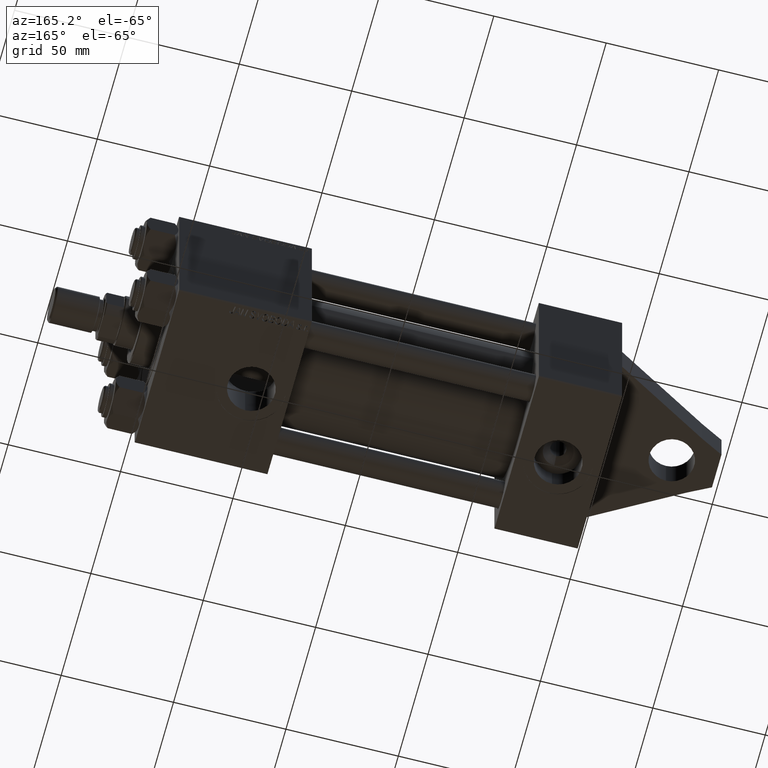
[diagram: clean part render]
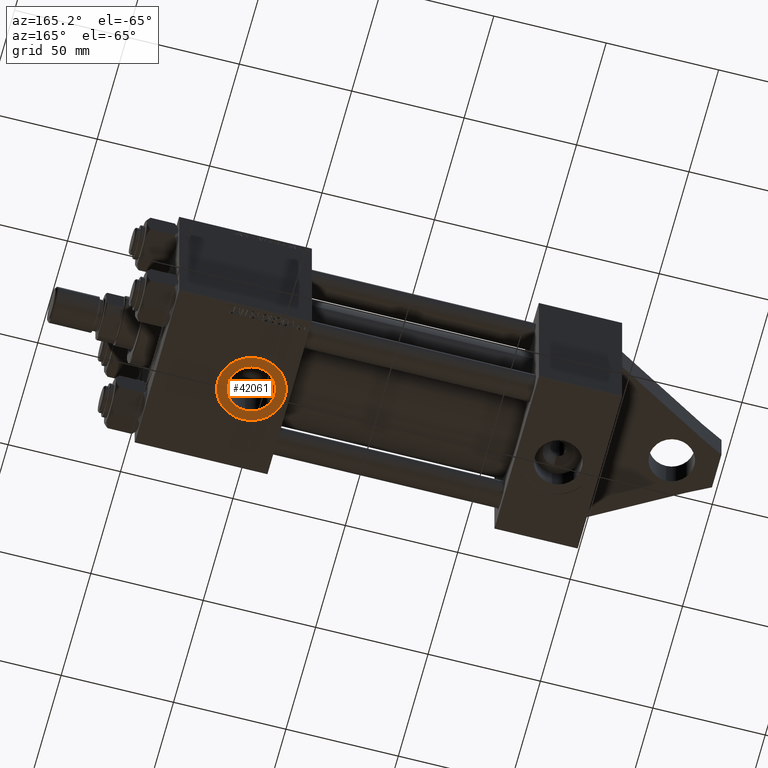
[diagram: same view with one face highlighted and labeled with its STEP entity id]
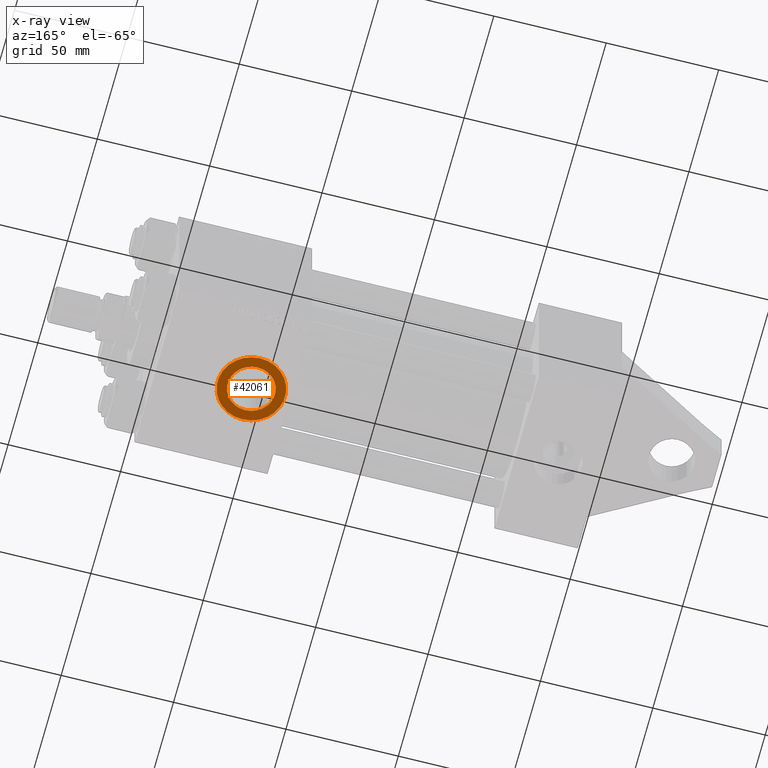
[diagram: x-ray of the same camera — body ghosted, the highlighted face saturated]
A machine part, auxiliary view. The second image highlights one B-rep face of the part: STEP entity #42061.
The next image is the same camera in x-ray: the body ghosted, the highlighted face saturated — about 0% of this face is hidden behind the body in this view.
In plain terms, the highlighted planar face has unit normal (-0, 0, -1).
Its self-contained STEP definition (entity closure, byte-faithful):
#183 = DIRECTION ( 'NONE',  ( 0.000000000000000000, -1.000000000000000000, -8.673617379884036705E-17 ) ) ;
#2932 = CIRCLE ( 'NONE', #23175, 15.00000000000002487 ) ;
#3242 = CARTESIAN_POINT ( 'NONE',  ( 155.0000000000000284, -37.29999999999999716, 3.486794186713383443E-15 ) ) ;
#3503 = DIRECTION ( 'NONE',  ( 0.000000000000000000, 0.000000000000000000, -1.000000000000000000 ) ) ;
#5045 = ORIENTED_EDGE ( 'NONE', *, *, #7814, .T. ) ;
#7814 = EDGE_CURVE ( 'NONE', #25571, #35540, #28763, .T. ) ;
#10577 = DIRECTION ( 'NONE',  ( 0.000000000000000000, -1.000000000000000000, -8.673617379884036705E-17 ) ) ;
#11340 = CARTESIAN_POINT ( 'NONE',  ( 155.0000000000000284, -37.29999999999999716, 3.486794186713383443E-15 ) ) ;
#12865 = CIRCLE ( 'NONE', #39143, 10.47999999999998622 ) ;
#16076 = ORIENTED_EDGE ( 'NONE', *, *, #44911, .F. ) ;
#17594 = DIRECTION ( 'NONE',  ( 0.000000000000000000, -1.000000000000000000, -8.673617379884036705E-17 ) ) ;
#23175 = AXIS2_PLACEMENT_3D ( 'NONE', #3242, #17594, #24409 ) ;
#24409 = DIRECTION ( 'NONE',  ( 0.000000000000000000, 0.000000000000000000, -1.000000000000000000 ) ) ;
#24926 = DIRECTION ( 'NONE',  ( 0.000000000000000000, 8.673617379884036705E-17, -1.000000000000000000 ) ) ;
#25571 = VERTEX_POINT ( 'NONE', #39977 ) ;
#28763 = CIRCLE ( 'NONE', #31007, 15.00000000000002487 ) ;
#29447 = DIRECTION ( 'NONE',  ( 0.000000000000000000, 0.000000000000000000, -1.000000000000000000 ) ) ;
#30427 = CARTESIAN_POINT ( 'NONE',  ( 155.0000000000000284, -37.29999999999999716, -15.00000000000002132 ) ) ;
#31007 = AXIS2_PLACEMENT_3D ( 'NONE', #11340, #44457, #29447 ) ;
#31755 = CARTESIAN_POINT ( 'NONE',  ( 155.0000000000000284, -37.29999999999999716, 3.486794186713383443E-15 ) ) ;
#33663 = ORIENTED_EDGE ( 'NONE', *, *, #42843, .F. ) ;
#34559 = AXIS2_PLACEMENT_3D ( 'NONE', #31755, #10577, #24926 ) ;
#35506 = CARTESIAN_POINT ( 'NONE',  ( 155.0000000000000284, -37.29999999999999716, 3.486794186713383443E-15 ) ) ;
#35540 = VERTEX_POINT ( 'NONE', #30427 ) ;
#38445 = EDGE_CURVE ( 'NONE', #35540, #25571, #2932, .T. ) ;
#39021 = DIRECTION ( 'NONE',  ( 0.000000000000000000, -1.000000000000000000, -8.673617379884036705E-17 ) ) ;
#39143 = AXIS2_PLACEMENT_3D ( 'NONE', #43194, #183, #45861 ) ;
#39475 = ORIENTED_EDGE ( 'NONE', *, *, #38445, .T. ) ;
#39733 = FACE_OUTER_BOUND ( 'NONE', #46523, .T. ) ;
#39977 = CARTESIAN_POINT ( 'NONE',  ( 155.0000000000000284, -37.29999999999999716, 15.00000000000002842 ) ) ;
#40200 = VERTEX_POINT ( 'NONE', #41724 ) ;
#41067 = EDGE_LOOP ( 'NONE', ( #33663, #16076 ) ) ;
#41355 = AXIS2_PLACEMENT_3D ( 'NONE', #35506, #39021, #3503 ) ;
#41630 = CARTESIAN_POINT ( 'NONE',  ( 155.0000000000000284, -37.29999999999999716, 10.47999999999998977 ) ) ;
#41724 = CARTESIAN_POINT ( 'NONE',  ( 155.0000000000000284, -37.29999999999999716, -10.47999999999998266 ) ) ;
#41943 = VERTEX_POINT ( 'NONE', #41630 ) ;
#42061 = ADVANCED_FACE ( 'NONE', ( #42548, #39733 ), #45850, .T. ) ;
#42548 = FACE_BOUND ( 'NONE', #41067, .T. ) ;
#42843 = EDGE_CURVE ( 'NONE', #40200, #41943, #43604, .T. ) ;
#43194 = CARTESIAN_POINT ( 'NONE',  ( 155.0000000000000284, -37.29999999999999716, 3.486794186713383443E-15 ) ) ;
#43604 = CIRCLE ( 'NONE', #41355, 10.47999999999998622 ) ;
#44457 = DIRECTION ( 'NONE',  ( 0.000000000000000000, -1.000000000000000000, -8.673617379884036705E-17 ) ) ;
#44911 = EDGE_CURVE ( 'NONE', #41943, #40200, #12865, .T. ) ;
#45850 = PLANE ( 'NONE',  #34559 ) ;
#45861 = DIRECTION ( 'NONE',  ( 0.000000000000000000, 0.000000000000000000, -1.000000000000000000 ) ) ;
#46523 = EDGE_LOOP ( 'NONE', ( #39475, #5045 ) ) ;